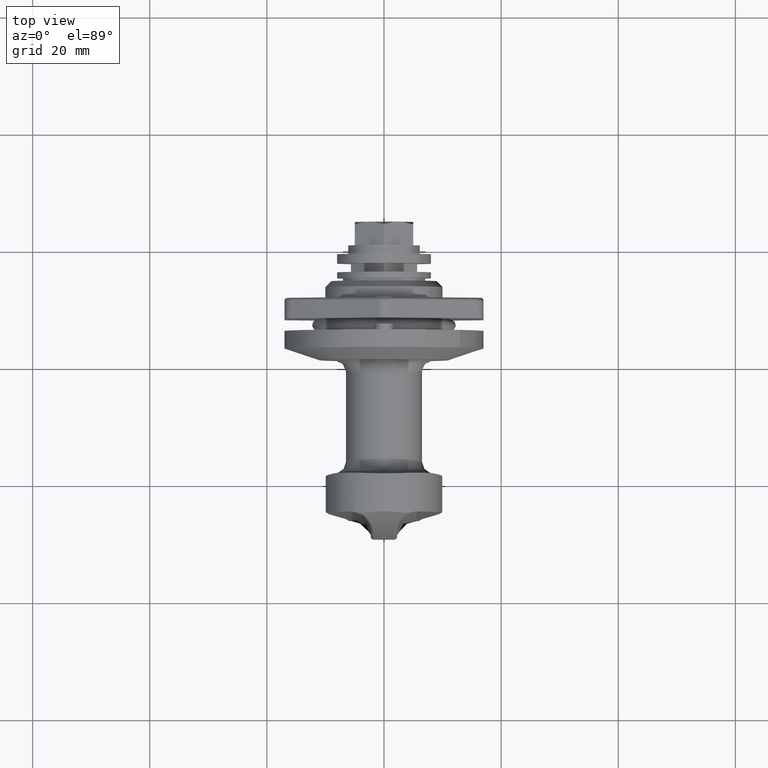
[diagram: clean part render]
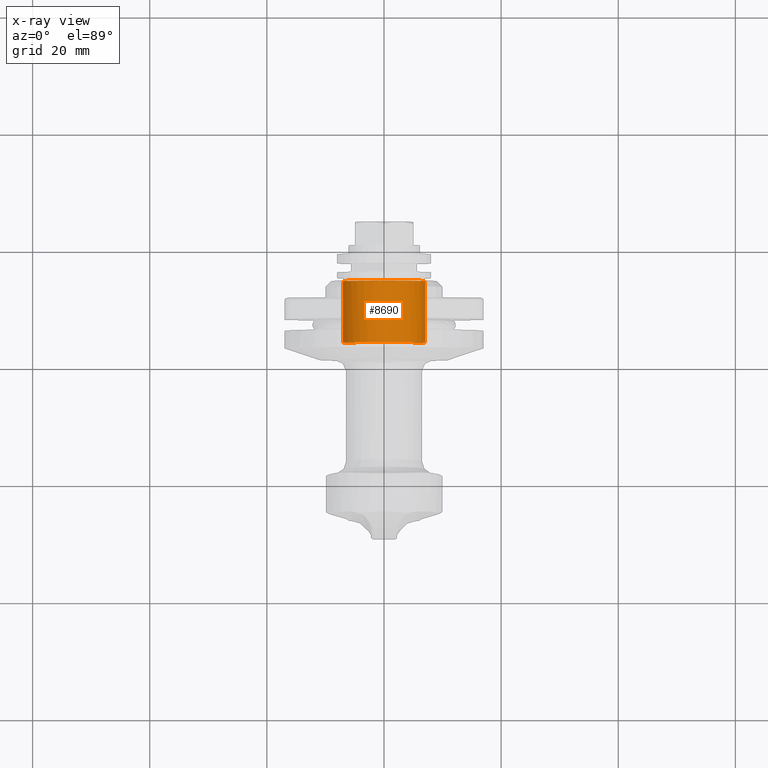
[diagram: x-ray — body ghosted, one internal face saturated and labeled with its STEP entity id]
A machine part, top view, then the same camera in x-ray: the body is ghosted and one INTERNAL B-rep face — a face not visible from any outside direction — is saturated and labeled: STEP entity #8690.
In plain terms, the highlighted face is a freeform B-spline surface patch.
Its self-contained STEP definition (entity closure, byte-faithful):
#8542=CARTESIAN_POINT('',(13.762499999999999,-4.992753144079269,-4.906364850098955));
#8543=CARTESIAN_POINT('',(13.762499999999999,-9.899117994178223,0.086388293980314));
#8544=CARTESIAN_POINT('',(13.762499999999999,-4.906364850098955,4.992753144079269));
#8545=CARTESIAN_POINT('',(13.762499999999999,0.086388293980314,9.899117994178223));
#8546=CARTESIAN_POINT('',(13.762499999999999,4.992753144079269,4.906364850098955));
#8547=CARTESIAN_POINT('',(13.762499999999999,9.899117994178223,-0.086388293980314));
#8548=CARTESIAN_POINT('',(13.762499999999999,4.906364850098955,-4.992753144079269));
#8549=CARTESIAN_POINT('',(2.730937500000000,-4.992753144079269,-4.906364850098955));
#8550=CARTESIAN_POINT('',(2.730937500000000,-9.899117994178223,0.086388293980314));
#8551=CARTESIAN_POINT('',(2.730937500000000,-4.906364850098955,4.992753144079269));
#8552=CARTESIAN_POINT('',(2.730937500000000,0.086388293980314,9.899117994178223));
#8553=CARTESIAN_POINT('',(2.730937500000000,4.992753144079269,4.906364850098955));
#8554=CARTESIAN_POINT('',(2.730937500000000,9.899117994178223,-0.086388293980314));
#8555=CARTESIAN_POINT('',(2.730937500000000,4.906364850098955,-4.992753144079269));
#8563=(BOUNDED_SURFACE()B_SPLINE_SURFACE(2,1,((#8542,#8549),(#8543,#8550),(#8544,#8551),(#8545,#8552),(#8546,#8553),(#8547,#8554),(#8548,#8555)),.UNSPECIFIED.,.F.,.F.,.U.)B_SPLINE_SURFACE_WITH_KNOTS((3,2,2,3),(2,2),(0.0,11.597979746446660,23.195959492893319,34.793939239339970),(0.0,11.031562500000000),.UNSPECIFIED.)GEOMETRIC_REPRESENTATION_ITEM()RATIONAL_B_SPLINE_SURFACE(((1.0,1.0),(0.707106781186548,0.707106781186548),(1.0,1.0),(0.707106781186548,0.707106781186548),(1.0,1.0),(0.707106781186548,0.707106781186548),(1.0,1.0)))REPRESENTATION_ITEM('')SURFACE());
#8564=CARTESIAN_POINT('',(13.500000000000000,-6.999999999999929,-0.000000998600985));
#8565=VERTEX_POINT('',#8564);
#8566=CARTESIAN_POINT('',(13.499999999997851,-4.992753350866652,-4.906364995796874));
#8567=VERTEX_POINT('',#8566);
#8568=CARTESIAN_POINT('',(13.500000000000000,-6.999999999999929,-0.000000998600985));
#8569=CARTESIAN_POINT('',(13.499999999999790,-7.000080544553492,-0.509693838426985));
#8570=CARTESIAN_POINT('',(13.499999999999300,-6.881991457347905,-1.585684147737839));
#8571=CARTESIAN_POINT('',(13.499999999998540,-6.273699951693719,-3.306963710085848));
#8572=CARTESIAN_POINT('',(13.499999999998090,-5.509065566328748,-4.381492905468685));
#8573=CARTESIAN_POINT('',(13.499999999997851,-4.992753350866652,-4.906364995796874));
#8574=B_SPLINE_CURVE_WITH_KNOTS('',3,(#8568,#8569,#8570,#8571,#8572,#8573),.UNSPECIFIED.,.F.,.U.,(4,1,1,4),(0.000000031146388,1.529081809017602,3.228047118386070,5.436733036393367),.UNSPECIFIED.);
#8575=EDGE_CURVE('',#8565,#8567,#8574,.T.);
#8576=ORIENTED_EDGE('',*,*,#8575,.T.);
#8577=CARTESIAN_POINT('',(3.000000000000001,-4.992752994903649,-4.906364645774857));
#8578=VERTEX_POINT('',#8577);
#8579=CARTESIAN_POINT('',(13.499999999997851,-4.992753350866652,-4.906364995796874));
#8580=CARTESIAN_POINT('',(3.000000000000001,-4.992752994903649,-4.906364645774857));
#8581=QUASI_UNIFORM_CURVE('',1,(#8579,#8580),.UNSPECIFIED.,.F.,.U.);
#8582=EDGE_CURVE('',#8567,#8578,#8581,.T.);
#8583=ORIENTED_EDGE('',*,*,#8582,.T.);
#8584=CARTESIAN_POINT('',(3.0,-6.999999999999929,0.000000998600985));
#8585=VERTEX_POINT('',#8584);
#8586=CARTESIAN_POINT('',(3.000000000000001,-4.992752994903649,-4.906364645774857));
#8587=CARTESIAN_POINT('',(2.999999999999993,-5.449441243720163,-4.441991856373978));
#8588=CARTESIAN_POINT('',(3.000000000000015,-6.010394067872869,-3.683357976196463));
#8589=CARTESIAN_POINT('',(2.999999999999992,-6.586508908282946,-2.449528579606873));
#8590=CARTESIAN_POINT('',(3.000000000000011,-6.914478964145634,-1.330848760394705));
#8591=CARTESIAN_POINT('',(3.0,-7.000058959852892,-0.453061728622473));
#8592=CARTESIAN_POINT('',(3.0,-6.999999999999929,0.000000998600985));
#8593=B_SPLINE_CURVE_WITH_KNOTS('',3,(#8586,#8587,#8588,#8589,#8590,#8591,#8592),.UNSPECIFIED.,.F.,.U.,(4,1,1,1,4),(0.000000031147009,1.953837227663998,2.803298103140671,4.077551137485347,5.436734839608604),.UNSPECIFIED.);
#8594=EDGE_CURVE('',#8578,#8585,#8593,.T.);
#8595=ORIENTED_EDGE('',*,*,#8594,.T.);
#8596=CARTESIAN_POINT('',(3.0,0.0,7.0));
#8597=VERTEX_POINT('',#8596);
#8598=CARTESIAN_POINT('',(3.0,-6.999999999999929,0.000000998600985));
#8599=CARTESIAN_POINT('',(3.0,-7.000124215161302,0.544062199519624));
#8600=CARTESIAN_POINT('',(3.000000000000006,-6.892594218702588,1.460293406705527));
#8601=CARTESIAN_POINT('',(2.999999999999992,-6.432846843895537,2.881552429130727));
#8602=CARTESIAN_POINT('',(3.000000000000011,-5.807128787490663,3.985996093583619));
#8603=CARTESIAN_POINT('',(2.999999999999990,-4.857916511879844,5.100231676898757));
#8604=CARTESIAN_POINT('',(3.000000000000006,-3.821786088428384,5.929443577294416));
#8605=CARTESIAN_POINT('',(2.999999999999994,-2.533533502324054,6.567954890113123));
#8606=CARTESIAN_POINT('',(3.000000000000003,-1.288524664989685,6.920688739666747));
#8607=CARTESIAN_POINT('',(2.999999999999999,-0.429513795807355,7.000043831164252));
#8608=CARTESIAN_POINT('',(3.0,0.0,7.0));
#8609=B_SPLINE_CURVE_WITH_KNOTS('',3,(#8598,#8599,#8600,#8601,#8602,#8603,#8604,#8605,#8606,#8607,#8608),.UNSPECIFIED.,.F.,.U.,(4,1,1,1,1,1,1,1,4),(0.000000113572368,1.632162029643981,2.748911065064347,4.466985312205591,5.411951240548442,7.129982771223602,8.418539496288354,9.707102671627546,10.995642717299630),.UNSPECIFIED.);
#8610=EDGE_CURVE('',#8585,#8597,#8609,.T.);
#8611=ORIENTED_EDGE('',*,*,#8610,.T.);
#8612=CARTESIAN_POINT('',(3.0,6.999999999999929,-0.000000998600888));
#8613=VERTEX_POINT('',#8612);
#8614=CARTESIAN_POINT('',(3.0,0.0,7.0));
#8615=CARTESIAN_POINT('',(2.999999999999999,0.429515481859155,7.000035112361869));
#8616=CARTESIAN_POINT('',(3.000000000000003,1.345805006880355,6.915431779358467));
#8617=CARTESIAN_POINT('',(2.999999999999991,2.670696424243617,6.522450544474236));
#8618=CARTESIAN_POINT('',(3.000000000000012,3.837930023852621,5.898472317658895));
#8619=CARTESIAN_POINT('',(2.999999999999982,4.942291447792626,5.025748254193376));
#8620=CARTESIAN_POINT('',(3.000000000000010,5.759598842347555,4.054492751632834));
#8621=CARTESIAN_POINT('',(2.999999999999996,6.375125819290412,2.951866980674920));
#8622=CARTESIAN_POINT('',(3.000000000000012,6.853431483524026,1.689306820797133));
#8623=CARTESIAN_POINT('',(2.999999999999983,7.000233200668981,0.658616327927208));
#8624=CARTESIAN_POINT('',(3.0,6.999999999999929,-0.000000998600888));
#8625=B_SPLINE_CURVE_WITH_KNOTS('',3,(#8614,#8615,#8616,#8617,#8618,#8619,#8620,#8621,#8622,#8623,#8624),.UNSPECIFIED.,.F.,.U.,(4,1,1,1,1,1,1,1,4),(0.000000113228317,1.288550433002335,2.748911346176858,4.123375632439036,5.240143845850707,6.958158555365980,7.903112901604347,9.019866049645810,10.995643842962661),.UNSPECIFIED.);
#8626=EDGE_CURVE('',#8597,#8613,#8625,.T.);
#8627=ORIENTED_EDGE('',*,*,#8626,.T.);
#8628=CARTESIAN_POINT('',(3.000000000000001,4.906364996152155,-4.992753350517486));
#8629=VERTEX_POINT('',#8628);
#8630=CARTESIAN_POINT('',(3.0,6.999999999999929,-0.000000998600888));
#8631=CARTESIAN_POINT('',(3.000000000000001,7.000174987566407,-0.579071732490577));
#8632=CARTESIAN_POINT('',(3.000000000000002,6.895177011356525,-1.418606965611481));
#8633=CARTESIAN_POINT('',(2.999999999999996,6.487257220041180,-2.719038840936597));
#8634=CARTESIAN_POINT('',(3.000000000000005,5.904983281225575,-3.861008300380750));
#8635=CARTESIAN_POINT('',(3.000000000000001,5.257471001659463,-4.647818911505984));
#8636=CARTESIAN_POINT('',(3.000000000000001,4.906364996152155,-4.992753350517486));
#8637=B_SPLINE_CURVE_WITH_KNOTS('',3,(#8630,#8631,#8632,#8633,#8634,#8635,#8636),.UNSPECIFIED.,.F.,.U.,(4,1,1,1,4),(0.000000029986467,1.737159136188113,2.518895038977380,4.082322527561838,5.558908467510847),.UNSPECIFIED.);
#8638=EDGE_CURVE('',#8613,#8629,#8637,.T.);
#8639=ORIENTED_EDGE('',*,*,#8638,.T.);
#8640=CARTESIAN_POINT('',(13.500000000002160,4.906364645413595,-4.992752995258694));
#8641=VERTEX_POINT('',#8640);
#8642=CARTESIAN_POINT('',(13.500000000002160,4.906364645413595,-4.992752995258694));
#8643=CARTESIAN_POINT('',(3.000000000000001,4.906364996152155,-4.992753350517486));
#8644=QUASI_UNIFORM_CURVE('',1,(#8642,#8643),.UNSPECIFIED.,.F.,.U.);
#8645=EDGE_CURVE('',#8641,#8629,#8644,.T.);
#8646=ORIENTED_EDGE('',*,*,#8645,.F.);
#8647=CARTESIAN_POINT('',(13.500000000000000,6.999999999999929,0.000000998600888));
#8648=VERTEX_POINT('',#8647);
#8649=CARTESIAN_POINT('',(13.500000000002160,4.906364645413595,-4.992752995258694));
#8650=CARTESIAN_POINT('',(13.500000000002050,5.216124080433562,-4.688371325681353));
#8651=CARTESIAN_POINT('',(13.500000000001670,5.872681349257765,-3.910699780188588));
#8652=CARTESIAN_POINT('',(13.500000000001229,6.510650524127706,-2.696911627766948));
#8653=CARTESIAN_POINT('',(13.500000000000499,6.911039040001008,-1.331779646811407));
#8654=CARTESIAN_POINT('',(13.500000000000250,7.000086530390201,-0.492198899551490));
#8655=CARTESIAN_POINT('',(13.500000000000000,6.999999999999929,0.000000998600888));
#8656=B_SPLINE_CURVE_WITH_KNOTS('',3,(#8649,#8650,#8651,#8652,#8653,#8654,#8655),.UNSPECIFIED.,.F.,.U.,(4,1,1,1,4),(0.000000029987136,1.302868730715391,3.040014442954856,4.082323849565189,5.558910267686826),.UNSPECIFIED.);
#8657=EDGE_CURVE('',#8641,#8648,#8656,.T.);
#8658=ORIENTED_EDGE('',*,*,#8657,.T.);
#8659=CARTESIAN_POINT('',(13.500000000000000,0.0,7.0));
#8660=VERTEX_POINT('',#8659);
#8661=CARTESIAN_POINT('',(13.500000000000000,6.999999999999929,0.000000998600888));
#8662=CARTESIAN_POINT('',(13.500000000000011,7.000124688602995,0.544062175514356));
#8663=CARTESIAN_POINT('',(13.499999999999980,6.892607660499980,1.460302183893916));
#8664=CARTESIAN_POINT('',(13.500000000000000,6.468139322768669,2.772178319462054));
#8665=CARTESIAN_POINT('',(13.500000000000041,5.898488429286059,3.837941421308821));
#8666=CARTESIAN_POINT('',(13.499999999999959,5.114759322513192,4.829550464369660));
#8667=CARTESIAN_POINT('',(13.499999999999890,4.172096623621661,5.673497520329422));
#8668=CARTESIAN_POINT('',(13.500000000000091,2.987517054444046,6.383545396652036));
#8669=CARTESIAN_POINT('',(13.500000000000121,1.574839943679104,6.879194304989555));
#8670=CARTESIAN_POINT('',(13.499999999999901,0.544061834108926,7.000125710420915));
#8671=CARTESIAN_POINT('',(13.500000000000000,0.0,7.0));
#8672=B_SPLINE_CURVE_WITH_KNOTS('',3,(#8661,#8662,#8663,#8664,#8665,#8666,#8667,#8668,#8669,#8670,#8671),.UNSPECIFIED.,.F.,.U.,(4,1,1,1,1,1,1,1,4),(0.000000113572396,1.632162029643935,2.748911065064267,4.123375210963652,5.240143309064328,6.528654473335301,7.903112092385669,9.363481357247332,10.995642717299690),.UNSPECIFIED.);
#8673=EDGE_CURVE('',#8648,#8660,#8672,.T.);
#8674=ORIENTED_EDGE('',*,*,#8673,.T.);
#8675=CARTESIAN_POINT('',(13.500000000000000,0.0,7.0));
#8676=CARTESIAN_POINT('',(13.500000000000011,-0.687247193121767,7.000274957851802));
#8677=CARTESIAN_POINT('',(13.500000000000000,-1.861091630556232,6.825701683820904));
#8678=CARTESIAN_POINT('',(13.500000000000011,-3.293724684826756,6.221825161673428));
#8679=CARTESIAN_POINT('',(13.500000000000000,-4.444872659804192,5.462840838450791));
#8680=CARTESIAN_POINT('',(13.499999999999950,-5.496576006697939,4.436825373073643));
#8681=CARTESIAN_POINT('',(13.500000000000140,-6.283666989769852,3.193695749573903));
#8682=CARTESIAN_POINT('',(13.499999999999870,-6.853407974828337,1.689299955371741));
#8683=CARTESIAN_POINT('',(13.500000000000060,-7.000243330608194,0.658617086419265));
#8684=CARTESIAN_POINT('',(13.500000000000000,-6.999999999999929,-0.000000998600985));
#8685=B_SPLINE_CURVE_WITH_KNOTS('',3,(#8675,#8676,#8677,#8678,#8679,#8680,#8681,#8682,#8683,#8684),.UNSPECIFIED.,.F.,.U.,(4,1,1,1,1,1,1,4),(0.000000113223829,2.061671562216025,3.522043784919100,4.638820199601398,6.185045935152647,7.903112901603324,9.019866049645200,10.995643842962741),.UNSPECIFIED.);
#8686=EDGE_CURVE('',#8660,#8565,#8685,.T.);
#8687=ORIENTED_EDGE('',*,*,#8686,.T.);
#8688=EDGE_LOOP('',(#8576,#8583,#8595,#8611,#8627,#8639,#8646,#8658,#8674,#8687));
#8689=FACE_OUTER_BOUND('',#8688,.T.);
#8690=ADVANCED_FACE('',(#8689),#8563,.F.);